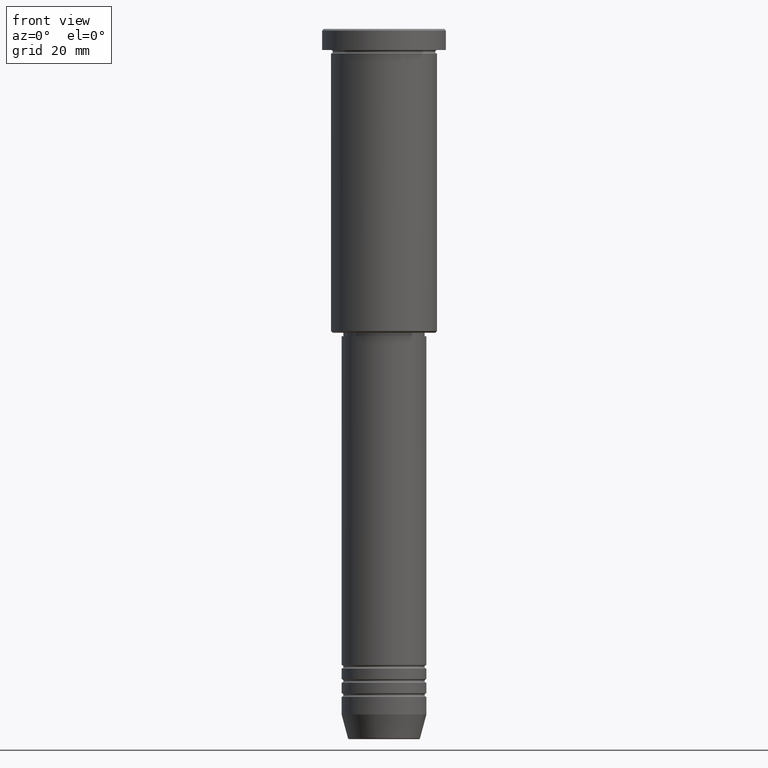
[diagram: clean part render]
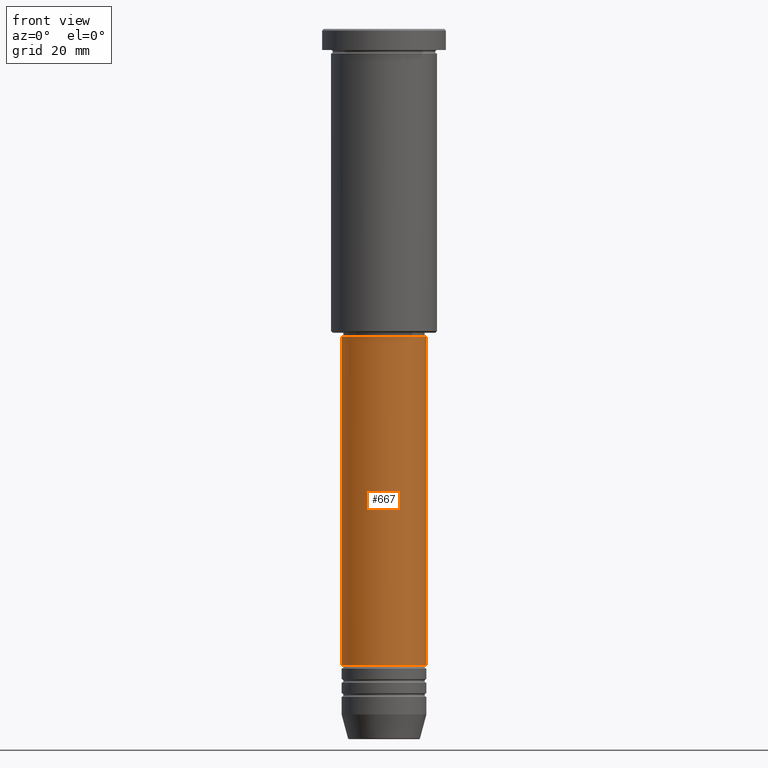
[diagram: same view with one face highlighted and labeled with its STEP entity id]
A machine part, front view. The second image highlights one B-rep face of the part: STEP entity #667.
In plain terms, the highlighted cylindrical surface (partial cylindrical patch) has radius 12 mm, axis along (-0, -0, 1).
Its self-contained STEP definition (entity closure, byte-faithful):
#51 = ORIENTED_EDGE ( 'NONE', *, *, #812, .T. ) ;
#61 = DIRECTION ( 'NONE',  ( 1.000000000000000000, 0.000000000000000000, 0.000000000000000000 ) ) ;
#91 = FACE_OUTER_BOUND ( 'NONE', #929, .T. ) ;
#152 = CIRCLE ( 'NONE', #188, 12.00000000000000000 ) ;
#172 = DIRECTION ( 'NONE',  ( -0.000000000000000000, -0.000000000000000000, 1.000000000000000000 ) ) ;
#188 = AXIS2_PLACEMENT_3D ( 'NONE', #400, #1046, #565 ) ;
#195 = DIRECTION ( 'NONE',  ( -0.000000000000000000, -0.000000000000000000, 1.000000000000000000 ) ) ;
#203 = VECTOR ( 'NONE', #869, 1000.000000000000000 ) ;
#215 = VERTEX_POINT ( 'NONE', #357 ) ;
#257 = CARTESIAN_POINT ( 'NONE',  ( 12.00000000000000000, 0.000000000000000000, -179.9999999999999147 ) ) ;
#333 = VECTOR ( 'NONE', #662, 1000.000000000000000 ) ;
#349 = DIRECTION ( 'NONE',  ( 1.000000000000000000, 0.000000000000000000, 0.000000000000000000 ) ) ;
#357 = CARTESIAN_POINT ( 'NONE',  ( -12.00000000000000000, 1.469576158976823947E-15, -87.00000000000004263 ) ) ;
#400 = CARTESIAN_POINT ( 'NONE',  ( 0.000000000000000000, 0.000000000000000000, -179.9999999999999147 ) ) ;
#404 = EDGE_CURVE ( 'NONE', #641, #215, #754, .T. ) ;
#470 = CYLINDRICAL_SURFACE ( 'NONE', #795, 12.00000000000000000 ) ;
#500 = EDGE_CURVE ( 'NONE', #215, #693, #1001, .T. ) ;
#551 = ORIENTED_EDGE ( 'NONE', *, *, #404, .F. ) ;
#554 = AXIS2_PLACEMENT_3D ( 'NONE', #611, #172, #61 ) ;
#565 = DIRECTION ( 'NONE',  ( 1.000000000000000000, 0.000000000000000000, 0.000000000000000000 ) ) ;
#611 = CARTESIAN_POINT ( 'NONE',  ( 0.000000000000000000, 0.000000000000000000, -87.00000000000004263 ) ) ;
#641 = VERTEX_POINT ( 'NONE', #835 ) ;
#642 = CARTESIAN_POINT ( 'NONE',  ( 0.000000000000000000, 0.000000000000000000, 0.000000000000000000 ) ) ;
#662 = DIRECTION ( 'NONE',  ( -0.000000000000000000, -0.000000000000000000, 1.000000000000000000 ) ) ;
#667 = ADVANCED_FACE ( 'NONE', ( #91 ), #470, .T. ) ;
#693 = VERTEX_POINT ( 'NONE', #1081 ) ;
#754 = LINE ( 'NONE', #780, #203 ) ;
#780 = CARTESIAN_POINT ( 'NONE',  ( -12.00000000000000000, 1.469576158976823947E-15, 0.000000000000000000 ) ) ;
#795 = AXIS2_PLACEMENT_3D ( 'NONE', #642, #195, #349 ) ;
#802 = EDGE_CURVE ( 'NONE', #641, #1013, #152, .T. ) ;
#812 = EDGE_CURVE ( 'NONE', #1013, #693, #1131, .T. ) ;
#835 = CARTESIAN_POINT ( 'NONE',  ( -12.00000000000000000, 1.469576158976823947E-15, -179.9999999999999147 ) ) ;
#869 = DIRECTION ( 'NONE',  ( -0.000000000000000000, -0.000000000000000000, 1.000000000000000000 ) ) ;
#929 = EDGE_LOOP ( 'NONE', ( #551, #946, #51, #1173 ) ) ;
#946 = ORIENTED_EDGE ( 'NONE', *, *, #802, .T. ) ;
#1001 = CIRCLE ( 'NONE', #554, 12.00000000000000000 ) ;
#1013 = VERTEX_POINT ( 'NONE', #257 ) ;
#1038 = CARTESIAN_POINT ( 'NONE',  ( 12.00000000000000000, 0.000000000000000000, 0.000000000000000000 ) ) ;
#1046 = DIRECTION ( 'NONE',  ( -0.000000000000000000, -0.000000000000000000, 1.000000000000000000 ) ) ;
#1081 = CARTESIAN_POINT ( 'NONE',  ( 12.00000000000000000, 0.000000000000000000, -87.00000000000004263 ) ) ;
#1131 = LINE ( 'NONE', #1038, #333 ) ;
#1173 = ORIENTED_EDGE ( 'NONE', *, *, #500, .F. ) ;